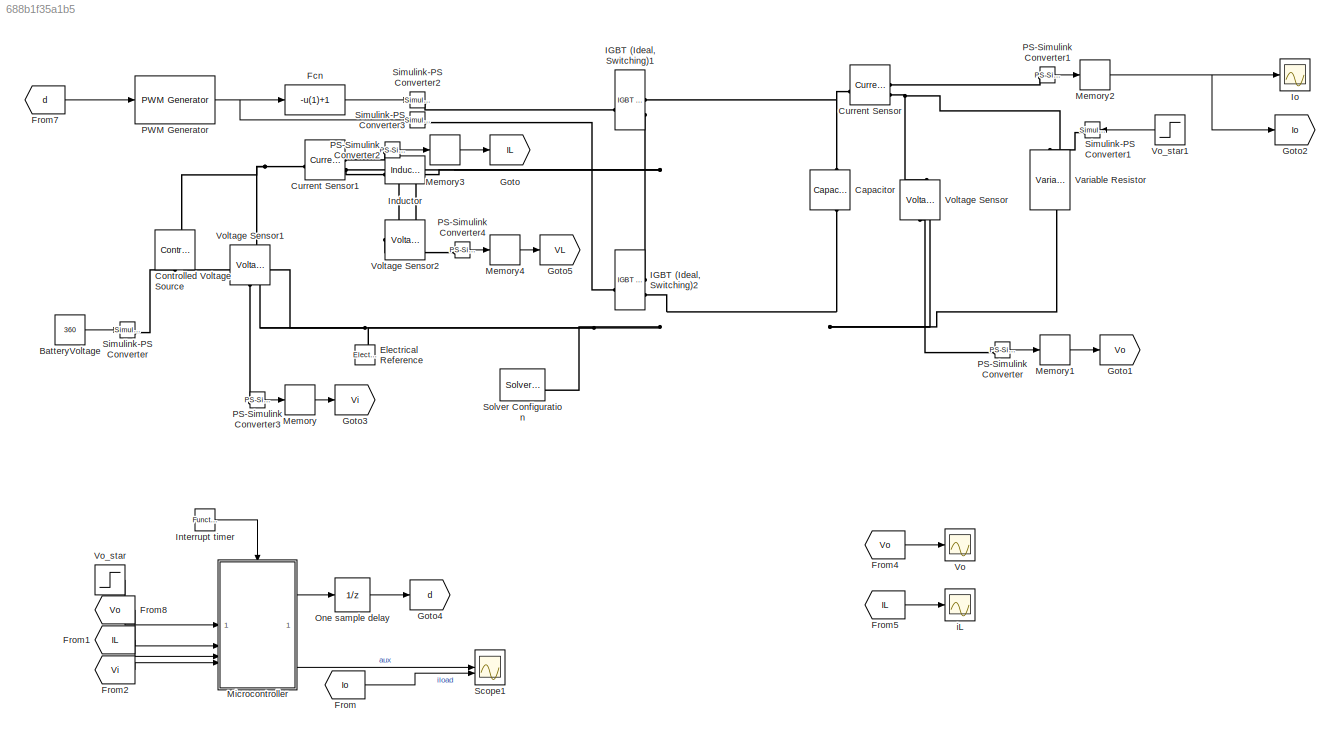
MODEL slx_688b1f35a1b5
KIND model
CONFIG AbsTol = auto
CONFIG EnableMultiTasking = off
CONFIG FixedStep = T/50
CONFIG MaxStep = auto
CONFIG MinStep = auto
CONFIG RelTol = 1e-3
CONFIG SampleTimeConstraint = Unconstrained
CONFIG SolverName = ode15s
CONFIG StartTime = 0.0
CONFIG StopTime = .2
BLOCK [Constant] BatteryVoltage
  Value = 360
BLOCK [Reference] Capacitor  REF=fl_lib/Electrical/Electrical Elements/Capacitor
  NameLocation = left
  SourceBlock = fl_lib/Electrical/Electrical Elements/Capacitor
  SourceType = Capacitor
BLOCK [Reference] Controlled Voltage Source  REF=fl_lib/Electrical/Electrical Sources/Controlled Voltage
Source
  NameLocation = right
  SourceBlock = fl_lib/Electrical/Electrical Sources/Controlled Voltage\nSource
  SourceType = Controlled Voltage\nSource
BLOCK [Reference] Current Sensor  REF=fl_lib/Electrical/Electrical Sensors/Current Sensor
  SourceBlock = fl_lib/Electrical/Electrical Sensors/Current Sensor
  SourceType = Current Sensor
BLOCK [Reference] Current Sensor1  REF=fl_lib/Electrical/Electrical Sensors/Current Sensor
  SourceBlock = fl_lib/Electrical/Electrical Sensors/Current Sensor
  SourceType = Current Sensor
BLOCK [Reference] Electrical Reference  REF=fl_lib/Electrical/Electrical Elements/Electrical Reference
  NameLocation = right
  SourceBlock = fl_lib/Electrical/Electrical Elements/Electrical Reference
  SourceType = Electrical Reference
BLOCK [Fcn] Fcn
  Expr = -u(1)+1
BLOCK [From] From
  GotoTag = Io
BLOCK [From] From1
  GotoTag = IL
BLOCK [From] From2
  GotoTag = Vi
BLOCK [From] From4
  GotoTag = Vo
BLOCK [From] From5
  GotoTag = IL
BLOCK [From] From7
  GotoTag = d
BLOCK [From] From8
  GotoTag = Vo
BLOCK [Goto] Goto
  GotoTag = IL
BLOCK [Goto] Goto1
  GotoTag = Vo
BLOCK [Goto] Goto2
  GotoTag = Io
BLOCK [Goto] Goto3
  GotoTag = Vi
BLOCK [Goto] Goto4
  GotoTag = d
BLOCK [Goto] Goto5
  GotoTag = VL
BLOCK [Reference] IGBT (Ideal, Switching)1  REF=ee_lib/Semiconductors &
Converters/IGBT
(Ideal,
Switching)
  SourceBlock = ee_lib/Semiconductors &\nConverters/IGBT\n(Ideal,\nSwitching)
  SourceType = IGBT\n(Ideal,\nSwitching)
BLOCK [Reference] IGBT (Ideal, Switching)2  REF=ee_lib/Semiconductors &
Converters/IGBT
(Ideal,
Switching)
  SourceBlock = ee_lib/Semiconductors &\nConverters/IGBT\n(Ideal,\nSwitching)
  SourceType = IGBT\n(Ideal,\nSwitching)
BLOCK [Reference] Inductor  REF=fl_lib/Electrical/Electrical Elements/Inductor
  SourceBlock = fl_lib/Electrical/Electrical Elements/Inductor
  SourceType = Inductor
BLOCK [Reference] Interrupt timer  REF=simulink/Ports &
Subsystems/Function-Call
Generator
  SourceBlock = simulink/Ports &\nSubsystems/Function-Call\nGenerator
  SourceType = Function-Call Generator
BLOCK [Scope] Io
  Floating = off
  NumInputPorts = 1
  ScopeSpecificationString = Simulink.scopes.TimeScopeBlockCfg('CurrentConfiguration', extmgr.ConfigurationSet(extmgr.Configuration('Core','General UI',true),extmgr.Configuration('Core','Source UI',true),extmgr.Configuration('Sources','WiredSimulink',true,'DataLoggingVariableName','ScopeData1'),extmgr.Configuration('Visuals','Time Domain',true,'SerializedDisplays',{struct('MinYLimReal','-11.26219','MaxYLimReal','101.3597','YL...<+1471ch>
BLOCK [Memory] Memory
BLOCK [Memory] Memory1
BLOCK [Memory] Memory2
BLOCK [Memory] Memory3
BLOCK [Memory] Memory4
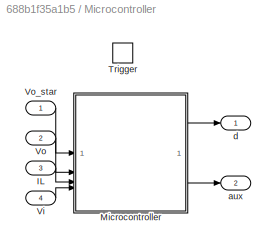
BLOCK [SubSystem] Microcontroller
BLOCK [Inport] Microcontroller/IL
  Port = 3
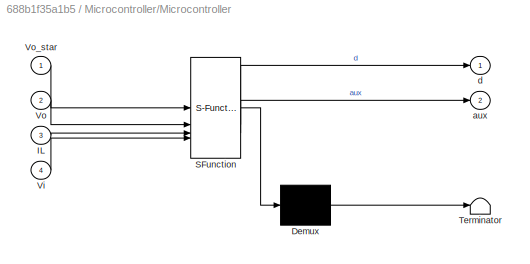
BLOCK [SubSystem] Microcontroller/Microcontroller
  ErrorFcn = Stateflow.Translate.translate
  PermitHierarchicalResolution = ExplicitOnly
  SFBlockType = MATLAB Function
  TreatAsAtomicUnit = on
BLOCK [Demux] Microcontroller/Microcontroller/ Demux 
  Outputs = 1
BLOCK [S-Function] Microcontroller/Microcontroller/ SFunction 
  EnableBusSupport = off
  FunctionName = sf_sfun
  PortCounts = [4 3]
  SFcnIsStateOwnerBlock = off
  SFunctionDeploymentMode = off
  Tag = Stateflow S-Function 3
BLOCK [Terminator] Microcontroller/Microcontroller/ Terminator 
BLOCK [Inport] Microcontroller/Microcontroller/IL
  Port = 3
BLOCK [Inport] Microcontroller/Microcontroller/Vi
  Port = 4
BLOCK [Inport] Microcontroller/Microcontroller/Vo
  Port = 2
BLOCK [Inport] Microcontroller/Microcontroller/Vo_star
BLOCK [Outport] Microcontroller/Microcontroller/aux
  Port = 2
  VectorParamsAs1DForOutWhenUnconnected = off
BLOCK [Outport] Microcontroller/Microcontroller/d
  VectorParamsAs1DForOutWhenUnconnected = off
BLOCK [TriggerPort] Microcontroller/Trigger
  StatesWhenEnabling = held
  TriggerType = function-call
  VariantControl = Variant
BLOCK [Inport] Microcontroller/Vi
  Port = 4
BLOCK [Inport] Microcontroller/Vo 
  Port = 2
BLOCK [Inport] Microcontroller/Vo_star
BLOCK [Outport] Microcontroller/aux
  Port = 2
  VectorParamsAs1DForOutWhenUnconnected = off
BLOCK [Outport] Microcontroller/d
  VectorParamsAs1DForOutWhenUnconnected = off
BLOCK [UnitDelay] One sample delay
  HasFrameUpgradeWarning = on
  SampleTime = T
BLOCK [Reference] PS-Simulink Converter  REF=nesl_utility/PS-Simulink
Converter
  SourceBlock = nesl_utility/PS-Simulink\nConverter
  SourceType = PS-Simulink\nConverter
BLOCK [Reference] PS-Simulink Converter1  REF=nesl_utility/PS-Simulink
Converter
  SourceBlock = nesl_utility/PS-Simulink\nConverter
  SourceType = PS-Simulink\nConverter
BLOCK [Reference] PS-Simulink Converter2  REF=nesl_utility/PS-Simulink
Converter
  SourceBlock = nesl_utility/PS-Simulink\nConverter
  SourceType = PS-Simulink\nConverter
BLOCK [Reference] PS-Simulink Converter3  REF=nesl_utility/PS-Simulink
Converter
  SourceBlock = nesl_utility/PS-Simulink\nConverter
  SourceType = PS-Simulink\nConverter
BLOCK [Reference] PS-Simulink Converter4  REF=nesl_utility/PS-Simulink
Converter
  SourceBlock = nesl_utility/PS-Simulink\nConverter
  SourceType = PS-Simulink\nConverter
BLOCK [Reference] PWM Generator  REF=eePwmGenerator/PWM Generator
  SourceBlock = eePwmGenerator/PWM Generator
  SourceType = PWM Generator
BLOCK [Scope] Scope1
  Floating = off
  NumInputPorts = 2
  ScopeSpecificationString = Simulink.scopes.TimeScopeBlockCfg('CurrentConfiguration', extmgr.ConfigurationSet(extmgr.Configuration('Core','General UI',true),extmgr.Configuration('Core','Source UI',true),extmgr.Configuration('Sources','WiredSimulink',true,'DataLoggingVariableName','ScopeData1'),extmgr.Configuration('Visuals','Time Domain',true,'SerializedDisplays',{struct('MinYLimReal','-6.87855','MaxYLimReal','61.90697','YLa...<+1494ch>
BLOCK [Reference] Simulink-PS Converter  REF=nesl_utility/Simulink-PS
Converter
  SourceBlock = nesl_utility/Simulink-PS\nConverter
  SourceType = Simulink-PS\nConverter
BLOCK [Reference] Simulink-PS Converter1  REF=nesl_utility/Simulink-PS
Converter
  SourceBlock = nesl_utility/Simulink-PS\nConverter
  SourceType = Simulink-PS\nConverter
BLOCK [Reference] Simulink-PS Converter2  REF=nesl_utility/Simulink-PS
Converter
  SourceBlock = nesl_utility/Simulink-PS\nConverter
  SourceType = Simulink-PS\nConverter
BLOCK [Reference] Simulink-PS Converter3  REF=nesl_utility/Simulink-PS
Converter
  SourceBlock = nesl_utility/Simulink-PS\nConverter
  SourceType = Simulink-PS\nConverter
BLOCK [Reference] Solver Configuration  REF=nesl_utility/Solver
Configuration
  SourceBlock = nesl_utility/Solver\nConfiguration
  SourceType = Solver\nConfiguration
BLOCK [Reference] Variable Resistor  REF=fl_lib/Electrical/Electrical Elements/Variable Resistor
  NameLocation = left
  SourceBlock = fl_lib/Electrical/Electrical Elements/Variable Resistor
  SourceType = Variable Resistor
BLOCK [Scope] Vo
  Floating = off
  NumInputPorts = 1
  ScopeSpecificationString = Simulink.scopes.TimeScopeBlockCfg('CurrentConfiguration', extmgr.ConfigurationSet(extmgr.Configuration('Core','General UI',true),extmgr.Configuration('Core','Source UI',true),extmgr.Configuration('Sources','WiredSimulink',true,'DataLoggingVariableName','ScopeData3'),extmgr.Configuration('Visuals','Time Domain',true,'SerializedDisplays',{struct('MinYLimReal','-70.61262','MaxYLimReal','635.51362','Y...<+1448ch>
BLOCK [Step] Vo_star
  After = Vo_ref
  SampleTime = 0
  Time = 0
BLOCK [Step] Vo_star1
  After = 565/90
  Before = 565/55
  SampleTime = 0
  Time = .1
BLOCK [Reference] Voltage Sensor  REF=fl_lib/Electrical/Electrical Sensors/Voltage Sensor
  NameLocation = right
  SourceBlock = fl_lib/Electrical/Electrical Sensors/Voltage Sensor
  SourceType = Voltage Sensor
BLOCK [Reference] Voltage Sensor1  REF=fl_lib/Electrical/Electrical Sensors/Voltage Sensor
  NameLocation = right
  SourceBlock = fl_lib/Electrical/Electrical Sensors/Voltage Sensor
  SourceType = Voltage Sensor
BLOCK [Reference] Voltage Sensor2  REF=fl_lib/Electrical/Electrical Sensors/Voltage Sensor
  NameLocation = top
  SourceBlock = fl_lib/Electrical/Electrical Sensors/Voltage Sensor
  SourceType = Voltage Sensor
BLOCK [Scope] iL
  Floating = off
  NumInputPorts = 1
  ScopeSpecificationString = Simulink.scopes.TimeScopeBlockCfg('CurrentConfiguration', extmgr.ConfigurationSet(extmgr.Configuration('Core','General UI',true),extmgr.Configuration('Core','Source UI',true),extmgr.Configuration('Sources','WiredSimulink',true,'DataLoggingVariableName','ScopeData4'),extmgr.Configuration('Visuals','Time Domain',true,'SerializedDisplays',{struct('MinYLimReal','-23.94295','MaxYLimReal','170.57033','Y...<+1502ch>
LINE BatteryVoltage:1 -> Simulink-PS Converter:1
LINE Fcn:1 -> Simulink-PS Converter2:1
LINE From1:1 -> Microcontroller:3
LINE From2:1 -> Microcontroller:4
LINE From4:1 -> Vo:1
LINE From5:1 -> iL:1
LINE From7:1 -> PWM Generator:1
LINE From8:1 -> Microcontroller:2
LINE From:1 -> Scope1:2
LINE Interrupt timer:1 -> Microcontroller:trigger
LINE Memory1:1 -> Goto1:1
NET Memory2:1 -> Goto2:1, Io:1
LINE Memory3:1 -> Goto:1
LINE Memory4:1 -> Goto5:1
LINE Memory:1 -> Goto3:1
LINE Microcontroller/IL:1 -> Microcontroller/Microcontroller:3
LINE Microcontroller/Microcontroller:1 -> Microcontroller/d:1
LINE Microcontroller/Microcontroller:2 -> Microcontroller/aux:1
LINE Microcontroller/Vi:1 -> Microcontroller/Microcontroller:4
LINE Microcontroller/Vo :1 -> Microcontroller/Microcontroller:2
LINE Microcontroller/Vo_star:1 -> Microcontroller/Microcontroller:1
LINE Microcontroller:1 -> One sample delay:1
LINE Microcontroller:2 -> Scope1:1
LINE One sample delay:1 -> Goto4:1
LINE PS-Simulink Converter1:1 -> Memory2:1
LINE PS-Simulink Converter2:1 -> Memory3:1
LINE PS-Simulink Converter3:1 -> Memory:1
LINE PS-Simulink Converter4:1 -> Memory4:1
LINE PS-Simulink Converter:1 -> Memory1:1
NET PWM Generator:1 -> Fcn:1, Simulink-PS Converter3:1
LINE Vo_star1:1 -> Simulink-PS Converter1:1
LINE Vo_star:1 -> Microcontroller:1
PNET net1: Capacitor:LConn1 -- Current Sensor:LConn1 -- IGBT (Ideal, Switching)1:RConn1
PNET net2: Capacitor:RConn1 -- Controlled Voltage Source:RConn2 -- Electrical Reference:LConn1 -- IGBT (Ideal, Switching)2:RConn2 -- Solver Configuration:RConn1 -- Variable Resistor:RConn1 -- Voltage Sensor1:RConn2 -- Voltage Sensor:RConn2
PNET net3: Controlled Voltage Source:LConn1 -- Current Sensor1:LConn1 -- Voltage Sensor1:LConn1
PLINE Controlled Voltage Source:RConn1 -- Simulink-PS Converter:RConn1
PLINE Current Sensor1:RConn1 -- PS-Simulink Converter2:LConn1
PNET net4: Current Sensor1:RConn2 -- Inductor:LConn1 -- Voltage Sensor2:LConn1
PLINE Current Sensor:RConn1 -- PS-Simulink Converter1:LConn1
PNET net5: Current Sensor:RConn2 -- Variable Resistor:LConn2 -- Voltage Sensor:LConn1
PLINE IGBT (Ideal, Switching)1:LConn1 -- Simulink-PS Converter2:RConn1
PNET net6: IGBT (Ideal, Switching)1:RConn2 -- IGBT (Ideal, Switching)2:RConn1 -- Inductor:RConn1 -- Voltage Sensor2:RConn2
PLINE IGBT (Ideal, Switching)2:LConn1 -- Simulink-PS Converter3:RConn1
PLINE PS-Simulink Converter3:LConn1 -- Voltage Sensor1:RConn1
PLINE PS-Simulink Converter4:LConn1 -- Voltage Sensor2:RConn1
PLINE PS-Simulink Converter:LConn1 -- Voltage Sensor:RConn1
PLINE Simulink-PS Converter1:RConn1 -- Variable Resistor:LConn1
note: NET lines group one-source signal fan-out (src -> all destinations, sorted); 1:1 wires keep LINE; PNET lines group multi-terminal physical nets as a canonical sorted terminal list (undirected conserving connections); 2-terminal nets keep the pairwise PLINE form
CHART Microcontroller/Microcontroller states=1 transitions=1
  STATE_LABEL 'eML_blk_kernel()'
  STATE_LABEL 'SCRIPT:\nfunction [d,aux] = microcontroller(Vo_star,Vo,IL,Vi)\n\n\n% Declare your constants below\n% Boost converter\nfc = 20000; % (Hz) Switching frequency\nT = 1/fc; % (s) sampling period\nL = 5e-3; % (H)\nR = 0.14; % (Ohm)\nCo = 1186.5e-6; % (F) \nI_max = 250; % (A) Nissan leaf drive max current\n\n% Current controller params\n% Zero-pole cancellation\nbw = 250; % (Hz) Closed-loop bandwidth\nkp = 2*pi*bw*L;\nki...<+3100ch>'
CHART  states=0 transitions=0
